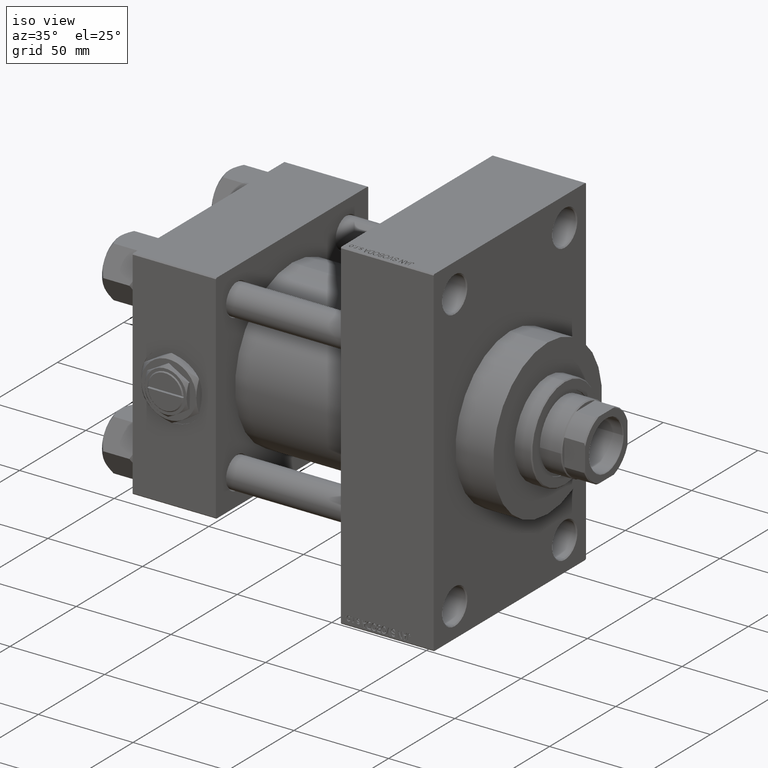
[diagram: clean part render]
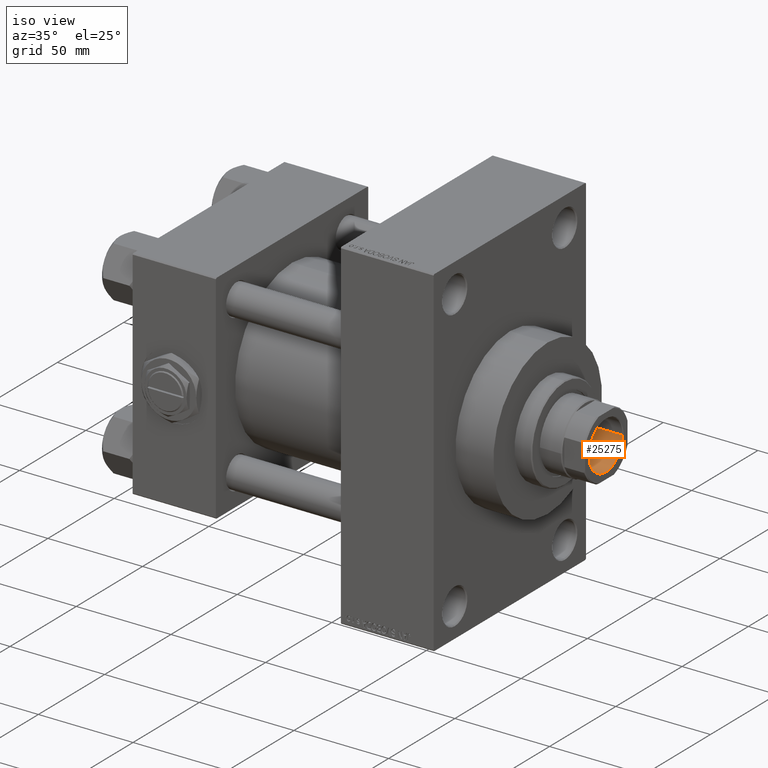
[diagram: same view with one face highlighted and labeled with its STEP entity id]
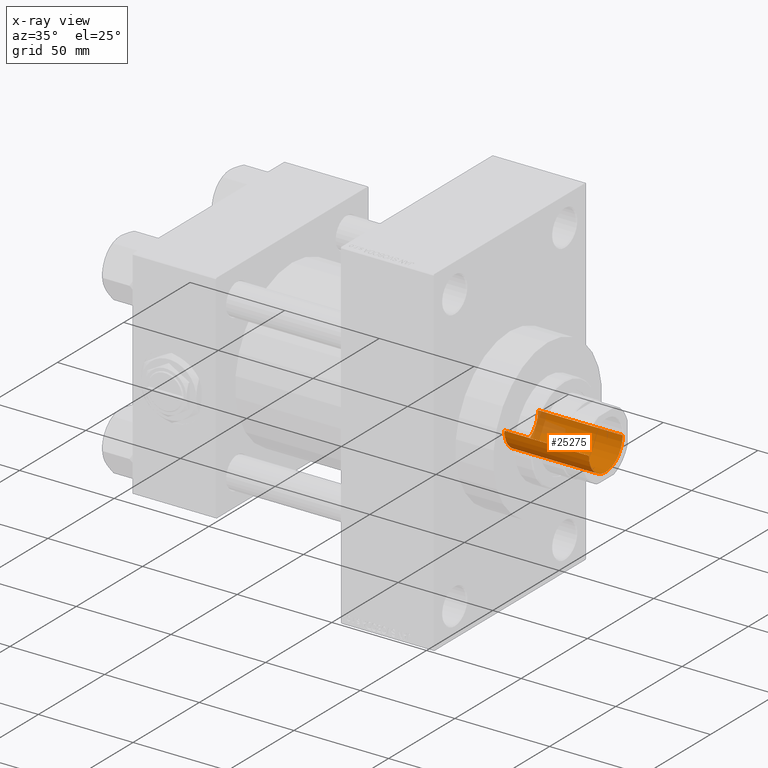
[diagram: x-ray of the same camera — body ghosted, the highlighted face saturated]
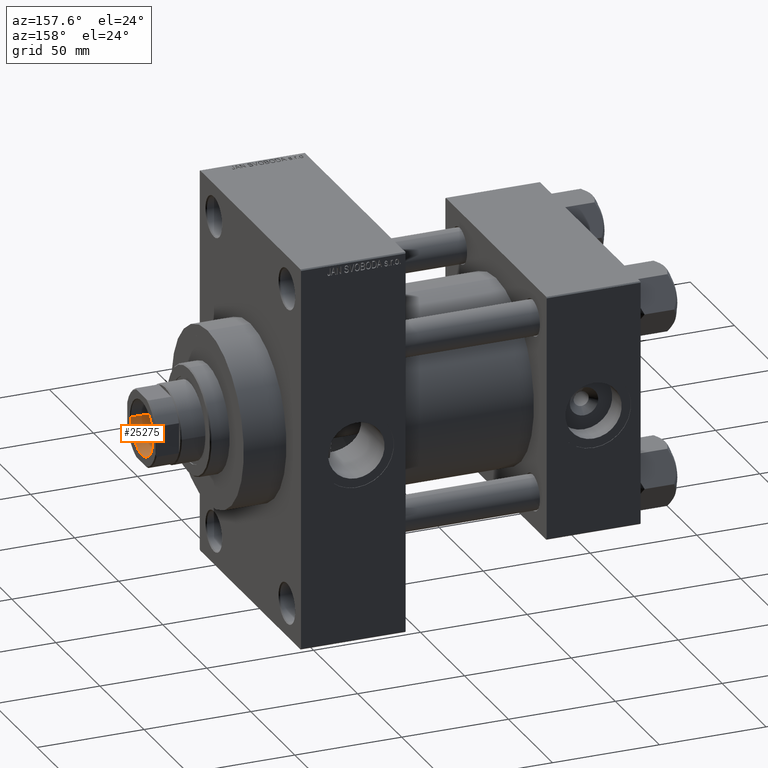
[diagram: same view with one face highlighted and labeled with its STEP entity id]
A machine part, iso view. The second image highlights one B-rep face of the part: STEP entity #25275.
The next image is the same camera in x-ray: the body ghosted, the highlighted face saturated — about 12% of this face is hidden behind the body in this view.
A second angle (auxiliary view) of the same face is appended — the face is thin or edge-on in the first view.
In plain terms, the highlighted cylindrical surface (edge-blend (fillet) strip) has radius 12.75 mm, axis along (1, 0, 0).
Its self-contained STEP definition (entity closure, byte-faithful):
#348 = CARTESIAN_POINT ( 'NONE',  ( 12.74999999999999112, 0.000000000000000000, 166.0000000000000000 ) ) ;
#2644 = CIRCLE ( 'NONE', #32224, 12.74999999999998934 ) ;
#5026 = DIRECTION ( 'NONE',  ( 0.000000000000000000, 0.000000000000000000, 1.000000000000000000 ) ) ;
#6286 = CARTESIAN_POINT ( 'NONE',  ( 0.000000000000000000, 0.000000000000000000, 166.0000000000000000 ) ) ;
#6980 = VERTEX_POINT ( 'NONE', #48369 ) ;
#7046 = EDGE_CURVE ( 'NONE', #14202, #39771, #26411, .T. ) ;
#8376 = ORIENTED_EDGE ( 'NONE', *, *, #7046, .T. ) ;
#9930 = CARTESIAN_POINT ( 'NONE',  ( 0.000000000000000000, 0.000000000000000000, 121.0000000000000142 ) ) ;
#14202 = VERTEX_POINT ( 'NONE', #21017 ) ;
#14652 = VERTEX_POINT ( 'NONE', #24423 ) ;
#15405 = VECTOR ( 'NONE', #48796, 1000.000000000000000 ) ;
#19061 = ORIENTED_EDGE ( 'NONE', *, *, #28165, .F. ) ;
#21017 = CARTESIAN_POINT ( 'NONE',  ( 12.74999999999998934, 0.000000000000000000, 121.0000000000000142 ) ) ;
#21024 = ORIENTED_EDGE ( 'NONE', *, *, #30192, .T. ) ;
#23068 = ORIENTED_EDGE ( 'NONE', *, *, #23351, .F. ) ;
#23351 = EDGE_CURVE ( 'NONE', #14652, #6980, #44798, .T. ) ;
#24423 = CARTESIAN_POINT ( 'NONE',  ( -12.74999999999998934, 1.561424668912873928E-15, 121.0000000000000142 ) ) ;
#25198 = DIRECTION ( 'NONE',  ( -0.000000000000000000, -0.000000000000000000, 1.000000000000000000 ) ) ;
#25275 = ADVANCED_FACE ( 'NONE', ( #29059 ), #29802, .F. ) ;
#25449 = DIRECTION ( 'NONE',  ( 1.000000000000000000, 0.000000000000000000, 0.000000000000000000 ) ) ;
#25698 = CARTESIAN_POINT ( 'NONE',  ( 12.74999999999999112, 0.000000000000000000, 165.7000000000000455 ) ) ;
#26411 = LINE ( 'NONE', #348, #39743 ) ;
#28165 = EDGE_CURVE ( 'NONE', #14202, #14652, #2644, .T. ) ;
#29059 = FACE_OUTER_BOUND ( 'NONE', #47103, .T. ) ;
#29311 = DIRECTION ( 'NONE',  ( 1.000000000000000000, 0.000000000000000000, 0.000000000000000000 ) ) ;
#29802 = CYLINDRICAL_SURFACE ( 'NONE', #43361, 12.74999999999999112 ) ;
#30192 = EDGE_CURVE ( 'NONE', #39771, #6980, #33072, .T. ) ;
#31318 = DIRECTION ( 'NONE',  ( 1.000000000000000000, 0.000000000000000000, 0.000000000000000000 ) ) ;
#32224 = AXIS2_PLACEMENT_3D ( 'NONE', #9930, #25198, #25449 ) ;
#33072 = CIRCLE ( 'NONE', #44212, 12.74999999999999112 ) ;
#33291 = DIRECTION ( 'NONE',  ( -0.000000000000000000, -0.000000000000000000, 1.000000000000000000 ) ) ;
#34383 = DIRECTION ( 'NONE',  ( -0.000000000000000000, -0.000000000000000000, 1.000000000000000000 ) ) ;
#39743 = VECTOR ( 'NONE', #34383, 1000.000000000000000 ) ;
#39771 = VERTEX_POINT ( 'NONE', #25698 ) ;
#42294 = CARTESIAN_POINT ( 'NONE',  ( 0.000000000000000000, 0.000000000000000000, 165.7000000000000455 ) ) ;
#43361 = AXIS2_PLACEMENT_3D ( 'NONE', #6286, #33291, #29311 ) ;
#44054 = CARTESIAN_POINT ( 'NONE',  ( -12.74999999999999112, 1.561424668912874125E-15, 166.0000000000000000 ) ) ;
#44212 = AXIS2_PLACEMENT_3D ( 'NONE', #42294, #5026, #31318 ) ;
#44798 = LINE ( 'NONE', #44054, #15405 ) ;
#47103 = EDGE_LOOP ( 'NONE', ( #23068, #19061, #8376, #21024 ) ) ;
#48369 = CARTESIAN_POINT ( 'NONE',  ( -12.74999999999999112, 1.561424668912874125E-15, 165.7000000000000455 ) ) ;
#48796 = DIRECTION ( 'NONE',  ( -0.000000000000000000, -0.000000000000000000, 1.000000000000000000 ) ) ;